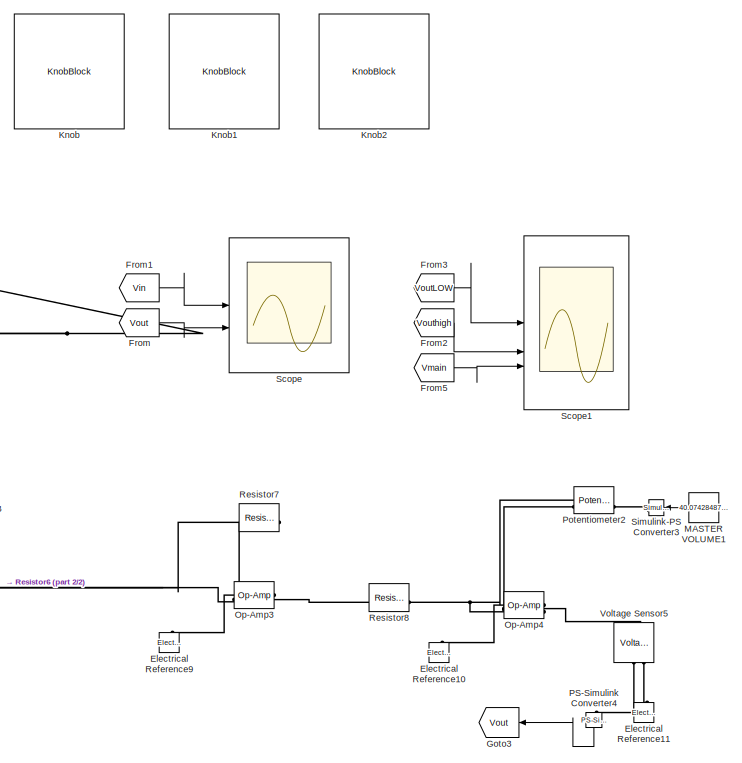
[diagram: root canvas - part 1/2, right side, full height]
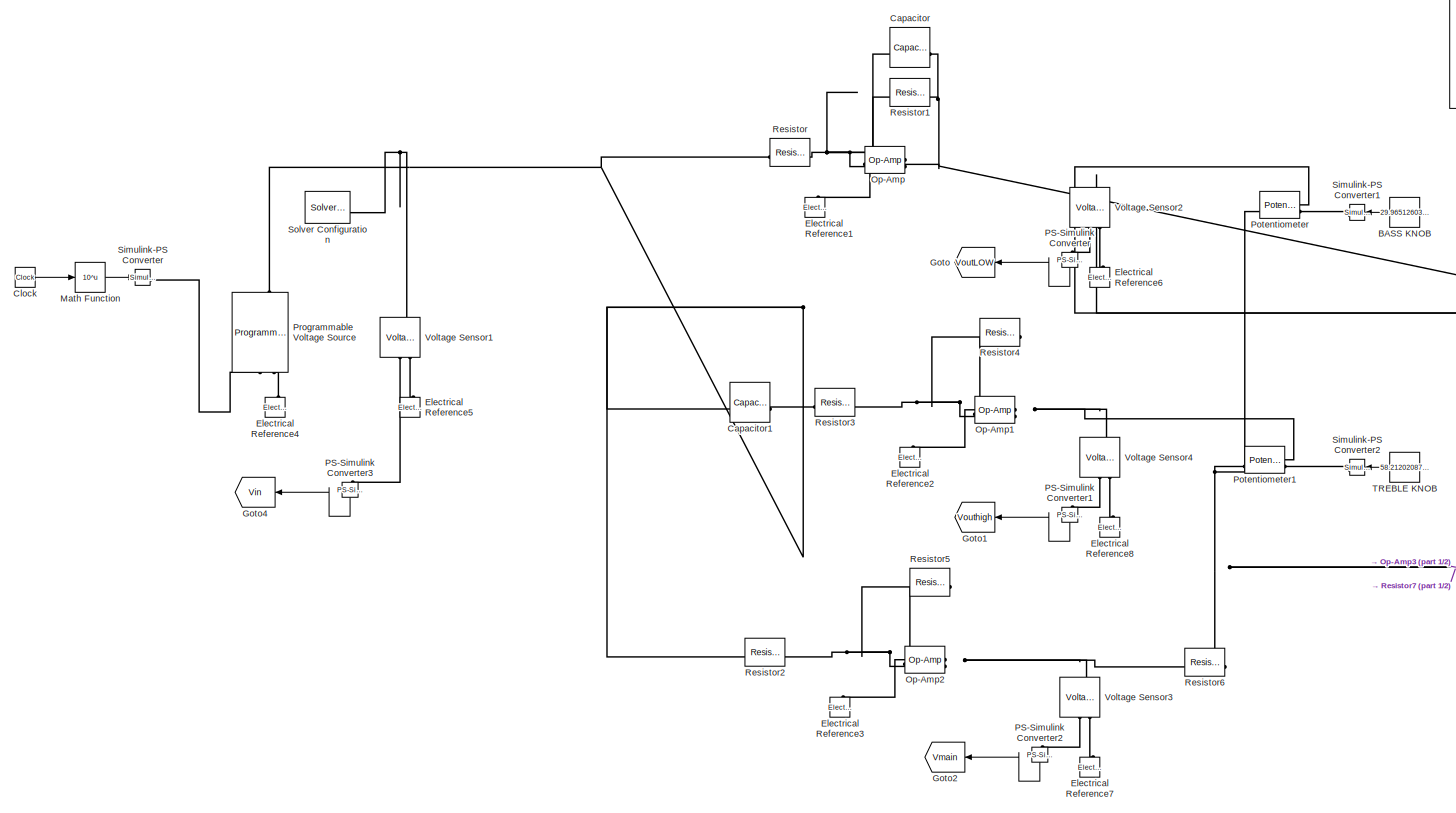
[diagram: root canvas - part 2/2, center side, full height]
MODEL slx_bec9451cd887
KIND model
CONFIG AbsTol = auto
CONFIG EnableMultiTasking = off
CONFIG FixedStep = auto
CONFIG MaxStep = auto
CONFIG MinStep = auto
CONFIG RelTol = 1e-3
CONFIG SampleTimeConstraint = Unconstrained
CONFIG SolverName = VariableStepAuto
CONFIG StartTime = 0.0
CONFIG StopTime = 10.0
BLOCK [Constant] BASS KNOB
  NameLocation = top
  Value = 29.96512603759766
BLOCK [Reference] Capacitor  REF=fl_lib/Electrical/Electrical Elements/Capacitor
  SourceBlock = fl_lib/Electrical/Electrical Elements/Capacitor
  SourceType = Capacitor
BLOCK [Reference] Capacitor1  REF=fl_lib/Electrical/Electrical Elements/Capacitor
  SourceBlock = fl_lib/Electrical/Electrical Elements/Capacitor
  SourceType = Capacitor
BLOCK [Clock] Clock
BLOCK [Reference] Electrical Reference1  REF=fl_lib/Electrical/Electrical Elements/Electrical Reference
  NameLocation = right
  SourceBlock = fl_lib/Electrical/Electrical Elements/Electrical Reference
  SourceType = Electrical Reference
BLOCK [Reference] Electrical Reference10  REF=fl_lib/Electrical/Electrical Elements/Electrical Reference
  NameLocation = right
  SourceBlock = fl_lib/Electrical/Electrical Elements/Electrical Reference
  SourceType = Electrical Reference
BLOCK [Reference] Electrical Reference11  REF=fl_lib/Electrical/Electrical Elements/Electrical Reference
  NameLocation = right
  SourceBlock = fl_lib/Electrical/Electrical Elements/Electrical Reference
  SourceType = Electrical Reference
BLOCK [Reference] Electrical Reference2  REF=fl_lib/Electrical/Electrical Elements/Electrical Reference
  NameLocation = right
  SourceBlock = fl_lib/Electrical/Electrical Elements/Electrical Reference
  SourceType = Electrical Reference
BLOCK [Reference] Electrical Reference3  REF=fl_lib/Electrical/Electrical Elements/Electrical Reference
  NameLocation = right
  SourceBlock = fl_lib/Electrical/Electrical Elements/Electrical Reference
  SourceType = Electrical Reference
BLOCK [Reference] Electrical Reference4  REF=fl_lib/Electrical/Electrical Elements/Electrical Reference
  NameLocation = right
  SourceBlock = fl_lib/Electrical/Electrical Elements/Electrical Reference
  SourceType = Electrical Reference
BLOCK [Reference] Electrical Reference5  REF=fl_lib/Electrical/Electrical Elements/Electrical Reference
  NameLocation = right
  SourceBlock = fl_lib/Electrical/Electrical Elements/Electrical Reference
  SourceType = Electrical Reference
BLOCK [Reference] Electrical Reference6  REF=fl_lib/Electrical/Electrical Elements/Electrical Reference
  NameLocation = right
  SourceBlock = fl_lib/Electrical/Electrical Elements/Electrical Reference
  SourceType = Electrical Reference
BLOCK [Reference] Electrical Reference7  REF=fl_lib/Electrical/Electrical Elements/Electrical Reference
  NameLocation = right
  SourceBlock = fl_lib/Electrical/Electrical Elements/Electrical Reference
  SourceType = Electrical Reference
BLOCK [Reference] Electrical Reference8  REF=fl_lib/Electrical/Electrical Elements/Electrical Reference
  NameLocation = right
  SourceBlock = fl_lib/Electrical/Electrical Elements/Electrical Reference
  SourceType = Electrical Reference
BLOCK [Reference] Electrical Reference9  REF=fl_lib/Electrical/Electrical Elements/Electrical Reference
  NameLocation = right
  SourceBlock = fl_lib/Electrical/Electrical Elements/Electrical Reference
  SourceType = Electrical Reference
BLOCK [From] From
  GotoTag = Vout
BLOCK [From] From1
  GotoTag = Vin
BLOCK [From] From2
  GotoTag = Vouthigh
BLOCK [From] From3
  GotoTag = VoutLOW
BLOCK [From] From5
  GotoTag = Vmain
BLOCK [Goto] Goto
  GotoTag = VoutLOW
  NameLocation = top
BLOCK [Goto] Goto1
  GotoTag = Vouthigh
  NameLocation = top
BLOCK [Goto] Goto2
  GotoTag = Vmain
  NameLocation = top
BLOCK [Goto] Goto3
  GotoTag = Vout
  NameLocation = top
BLOCK [Goto] Goto4
  GotoTag = Vin
  NameLocation = top
BLOCK [KnobBlock] Knob
BLOCK [KnobBlock] Knob1
BLOCK [KnobBlock] Knob2
BLOCK [Constant] MASTER VOLUME1
  NameLocation = top
  Value = 40.07428487141927
BLOCK [Math] Math Function
  Operator = 10^u
BLOCK [Reference] Op-Amp  REF=fl_lib/Electrical/Electrical Elements/Op-Amp
  NameLocation = top
  SourceBlock = fl_lib/Electrical/Electrical Elements/Op-Amp
  SourceType = Op-Amp
BLOCK [Reference] Op-Amp1  REF=fl_lib/Electrical/Electrical Elements/Op-Amp
  NameLocation = top
  SourceBlock = fl_lib/Electrical/Electrical Elements/Op-Amp
  SourceType = Op-Amp
BLOCK [Reference] Op-Amp2  REF=fl_lib/Electrical/Electrical Elements/Op-Amp
  NameLocation = top
  SourceBlock = fl_lib/Electrical/Electrical Elements/Op-Amp
  SourceType = Op-Amp
BLOCK [Reference] Op-Amp3  REF=fl_lib/Electrical/Electrical Elements/Op-Amp
  NameLocation = top
  SourceBlock = fl_lib/Electrical/Electrical Elements/Op-Amp
  SourceType = Op-Amp
BLOCK [Reference] Op-Amp4  REF=fl_lib/Electrical/Electrical Elements/Op-Amp
  NameLocation = top
  SourceBlock = fl_lib/Electrical/Electrical Elements/Op-Amp
  SourceType = Op-Amp
BLOCK [Reference] PS-Simulink Converter  REF=nesl_utility/PS-Simulink
Converter
  NameLocation = left
  SourceBlock = nesl_utility/PS-Simulink\nConverter
  SourceType = PS-Simulink\nConverter
BLOCK [Reference] PS-Simulink Converter1  REF=nesl_utility/PS-Simulink
Converter
  NameLocation = left
  SourceBlock = nesl_utility/PS-Simulink\nConverter
  SourceType = PS-Simulink\nConverter
BLOCK [Reference] PS-Simulink Converter2  REF=nesl_utility/PS-Simulink
Converter
  NameLocation = left
  SourceBlock = nesl_utility/PS-Simulink\nConverter
  SourceType = PS-Simulink\nConverter
BLOCK [Reference] PS-Simulink Converter3  REF=nesl_utility/PS-Simulink
Converter
  NameLocation = left
  SourceBlock = nesl_utility/PS-Simulink\nConverter
  SourceType = PS-Simulink\nConverter
BLOCK [Reference] PS-Simulink Converter4  REF=nesl_utility/PS-Simulink
Converter
  NameLocation = left
  SourceBlock = nesl_utility/PS-Simulink\nConverter
  SourceType = PS-Simulink\nConverter
BLOCK [Reference] Potentiometer  REF=ee_lib/Passive/Potentiometer
  SourceBlock = ee_lib/Passive/Potentiometer
  SourceType = Potentiometer
BLOCK [Reference] Potentiometer1  REF=ee_lib/Passive/Potentiometer
  SourceBlock = ee_lib/Passive/Potentiometer
  SourceType = Potentiometer
BLOCK [Reference] Potentiometer2  REF=ee_lib/Passive/Potentiometer
  SourceBlock = ee_lib/Passive/Potentiometer
  SourceType = Potentiometer
BLOCK [Reference] Programmable Voltage Source  REF=ee_lib/Sources/Programmable Voltage
Source
  NameLocation = right
  SourceBlock = ee_lib/Sources/Programmable Voltage\nSource
  SourceType = Programmable Voltage\nSource
BLOCK [Reference] Resistor  REF=fl_lib/Electrical/Electrical Elements/Resistor
  SourceBlock = fl_lib/Electrical/Electrical Elements/Resistor
  SourceType = Resistor
BLOCK [Reference] Resistor1  REF=fl_lib/Electrical/Electrical Elements/Resistor
  SourceBlock = fl_lib/Electrical/Electrical Elements/Resistor
  SourceType = Resistor
BLOCK [Reference] Resistor2  REF=fl_lib/Electrical/Electrical Elements/Resistor
  SourceBlock = fl_lib/Electrical/Electrical Elements/Resistor
  SourceType = Resistor
BLOCK [Reference] Resistor3  REF=fl_lib/Electrical/Electrical Elements/Resistor
  SourceBlock = fl_lib/Electrical/Electrical Elements/Resistor
  SourceType = Resistor
BLOCK [Reference] Resistor4  REF=fl_lib/Electrical/Electrical Elements/Resistor
  SourceBlock = fl_lib/Electrical/Electrical Elements/Resistor
  SourceType = Resistor
BLOCK [Reference] Resistor5  REF=fl_lib/Electrical/Electrical Elements/Resistor
  SourceBlock = fl_lib/Electrical/Electrical Elements/Resistor
  SourceType = Resistor
BLOCK [Reference] Resistor6  REF=fl_lib/Electrical/Electrical Elements/Resistor
  SourceBlock = fl_lib/Electrical/Electrical Elements/Resistor
  SourceType = Resistor
BLOCK [Reference] Resistor7  REF=fl_lib/Electrical/Electrical Elements/Resistor
  SourceBlock = fl_lib/Electrical/Electrical Elements/Resistor
  SourceType = Resistor
BLOCK [Reference] Resistor8  REF=fl_lib/Electrical/Electrical Elements/Resistor
  SourceBlock = fl_lib/Electrical/Electrical Elements/Resistor
  SourceType = Resistor
BLOCK [Scope] Scope
  ActiveDisplayYMaximum = 17.672725613110412
  ActiveDisplayYMinimum = -21.363071636211536
  Floating = off
  GraphicalSettings = {"Style":{"BackgroundColor":[0.12941176470588237,0.12941176470588237,0.12941176470588237],"AxesColor":[0.07058823529411765,0.07058823529411765,0.07058823529411765],"LabelsColor":[0.8509803921568627,0.8509803921568627,0.8509803921568627],"PreserveColors":false,"Visible":[true,true],"LineStyle":["-","-"],"LineWidth":[1.5,1.5],"BarWidth":[0.9,0.9],"LineColor":["auto","auto"],"LineFaceAlpha":[1,1],"Li...<+2174ch>
  LayoutDimensionsString = [1,1]
  MultipleDisplayCache = [{"MaxYLimMag":21.363071636211536,"MaxYLimReal":17.672725613110412,"MinYLimMag":0,"MinYLimReal":-21.363071636211536,"PlotAsMagnitudePhase":false,"ShowGrid":true,"ShowLegend":false,"Title":"%<SignalLabel>","YLabel":""}]
  NumInputPorts = 2
  ScopeFrameLocation = window
  WasSavedAsWebScope = on
  WindowPosition = [0.000000,36.000000,1536.000000,793.000000,]
BLOCK [Scope] Scope1
  ActiveDisplayYMaximum = 17.672725613110412
  ActiveDisplayYMinimum = -21.363071636211536
  DataLoggingVariableName = ScopeData1
  Floating = off
  GraphicalSettings = {"Style":{"BackgroundColor":[0.12941176470588237,0.12941176470588237,0.12941176470588237],"AxesColor":[0.07058823529411765,0.07058823529411765,0.07058823529411765],"LabelsColor":[0.8509803921568627,0.8509803921568627,0.8509803921568627],"PreserveColors":false,"Visible":[true,true,true],"LineStyle":["-","-","-"],"LineWidth":[1.5,1.5,1.5],"BarWidth":[0.9,0.9,0.9],"LineColor":["auto","auto","auto"],"...<+2949ch>
  LayoutDimensionsString = [1,3]
  MultipleDisplayCache = [{"MaxYLimMag":21.363071636211536,"MaxYLimReal":17.672725613110412,"MinYLimMag":0,"MinYLimReal":-21.363071636211536,"PlotAsMagnitudePhase":false,"ShowGrid":true,"ShowLegend":false,"Title":"%<SignalLabel>","YLabel":""},{"MaxYLimMag":21.363071636211536,"MaxYLimReal":17.672725613110412,"MinYLimMag":0,"MinYLimReal":-21.363071636211536,"PlotAsMagnitudePhase":false,"ShowGrid":true,"ShowLegend":false,"Ti...<+252ch>
  NumInputPorts = 3
  ScopeFrameLocation = window
  WasSavedAsWebScope = on
  WindowPosition = [0.000000,36.000000,1536.000000,793.000000,]
BLOCK [Reference] Simulink-PS Converter  REF=nesl_utility/Simulink-PS
Converter
  SourceBlock = nesl_utility/Simulink-PS\nConverter
  SourceType = Simulink-PS\nConverter
BLOCK [Reference] Simulink-PS Converter1  REF=nesl_utility/Simulink-PS
Converter
  NameLocation = top
  SourceBlock = nesl_utility/Simulink-PS\nConverter
  SourceType = Simulink-PS\nConverter
BLOCK [Reference] Simulink-PS Converter2  REF=nesl_utility/Simulink-PS
Converter
  NameLocation = top
  SourceBlock = nesl_utility/Simulink-PS\nConverter
  SourceType = Simulink-PS\nConverter
BLOCK [Reference] Simulink-PS Converter3  REF=nesl_utility/Simulink-PS
Converter
  NameLocation = top
  SourceBlock = nesl_utility/Simulink-PS\nConverter
  SourceType = Simulink-PS\nConverter
BLOCK [Reference] Solver Configuration  REF=nesl_utility/Solver
Configuration
  SourceBlock = nesl_utility/Solver\nConfiguration
  SourceType = Solver\nConfiguration
BLOCK [Constant] TREBLE KNOB
  NameLocation = top
  Value = 58.21202087402344
BLOCK [Reference] Voltage Sensor1  REF=fl_lib/Electrical/Electrical Sensors/Voltage Sensor
  NameLocation = right
  SourceBlock = fl_lib/Electrical/Electrical Sensors/Voltage Sensor
  SourceType = Voltage Sensor
BLOCK [Reference] Voltage Sensor2  REF=fl_lib/Electrical/Electrical Sensors/Voltage Sensor
  NameLocation = right
  SourceBlock = fl_lib/Electrical/Electrical Sensors/Voltage Sensor
  SourceType = Voltage Sensor
BLOCK [Reference] Voltage Sensor3  REF=fl_lib/Electrical/Electrical Sensors/Voltage Sensor
  NameLocation = right
  SourceBlock = fl_lib/Electrical/Electrical Sensors/Voltage Sensor
  SourceType = Voltage Sensor
BLOCK [Reference] Voltage Sensor4  REF=fl_lib/Electrical/Electrical Sensors/Voltage Sensor
  NameLocation = right
  SourceBlock = fl_lib/Electrical/Electrical Sensors/Voltage Sensor
  SourceType = Voltage Sensor
BLOCK [Reference] Voltage Sensor5  REF=fl_lib/Electrical/Electrical Sensors/Voltage Sensor
  NameLocation = right
  SourceBlock = fl_lib/Electrical/Electrical Sensors/Voltage Sensor
  SourceType = Voltage Sensor
LINE BASS KNOB:1 -> Simulink-PS Converter1:1
LINE Clock:1 -> Math Function:1
LINE From1:1 -> Scope:1
LINE From2:1 -> Scope1:2
LINE From3:1 -> Scope1:1
LINE From5:1 -> Scope1:3
LINE From:1 -> Scope:2
LINE MASTER VOLUME1:1 -> Simulink-PS Converter3:1
LINE Math Function:1 -> Simulink-PS Converter:1
LINE PS-Simulink Converter1:1 -> Goto1:1
LINE PS-Simulink Converter2:1 -> Goto2:1
LINE PS-Simulink Converter3:1 -> Goto4:1
LINE PS-Simulink Converter4:1 -> Goto3:1
LINE PS-Simulink Converter:1 -> Goto:1
LINE TREBLE KNOB:1 -> Simulink-PS Converter2:1
PNET net1: Capacitor1:LConn1 -- Programmable Voltage Source:LConn1 -- Resistor2:LConn1 -- Resistor:LConn1 -- Solver Configuration:RConn1 -- Voltage Sensor1:LConn1
PLINE Capacitor1:RConn1 -- Resistor3:LConn1
PNET net2: Capacitor:LConn1 -- Op-Amp:LConn2 -- Resistor1:LConn1 -- Resistor:RConn1
PNET net3: Capacitor:RConn1 -- Op-Amp:RConn1 -- Potentiometer:RConn1 -- Resistor1:RConn1 -- Voltage Sensor2:LConn1
PLINE Electrical Reference10:LConn1 -- Op-Amp4:LConn1
PLINE Electrical Reference11:LConn1 -- Voltage Sensor5:RConn2
PLINE Electrical Reference1:LConn1 -- Op-Amp:LConn1
PLINE Electrical Reference2:LConn1 -- Op-Amp1:LConn1
PLINE Electrical Reference3:LConn1 -- Op-Amp2:LConn1
PLINE Electrical Reference4:LConn1 -- Programmable Voltage Source:RConn2
PLINE Electrical Reference5:LConn1 -- Voltage Sensor1:RConn2
PLINE Electrical Reference6:LConn1 -- Voltage Sensor2:RConn2
PLINE Electrical Reference7:LConn1 -- Voltage Sensor3:RConn2
PLINE Electrical Reference8:LConn1 -- Voltage Sensor4:RConn2
PLINE Electrical Reference9:LConn1 -- Op-Amp3:LConn1
PNET net4: Op-Amp1:LConn2 -- Resistor3:RConn1 -- Resistor4:LConn1
PNET net5: Op-Amp1:RConn1 -- Potentiometer1:RConn1 -- Resistor4:RConn1 -- Voltage Sensor4:LConn1
PNET net6: Op-Amp2:LConn2 -- Resistor2:RConn1 -- Resistor5:LConn1
PNET net7: Op-Amp2:RConn1 -- Resistor5:RConn1 -- Resistor6:LConn1 -- Voltage Sensor3:LConn1
PNET net8: Op-Amp3:LConn2 -- Potentiometer1:LConn2 -- Potentiometer:LConn2 -- Resistor6:RConn1 -- Resistor7:LConn1
PNET net9: Op-Amp3:RConn1 -- Resistor7:RConn1 -- Resistor8:LConn1
PNET net10: Op-Amp4:LConn2 -- Potentiometer2:LConn1 -- Resistor8:RConn1
PNET net11: Op-Amp4:RConn1 -- Potentiometer2:LConn2 -- Voltage Sensor5:LConn1
PLINE PS-Simulink Converter1:LConn1 -- Voltage Sensor4:RConn1
PLINE PS-Simulink Converter2:LConn1 -- Voltage Sensor3:RConn1
PLINE PS-Simulink Converter3:LConn1 -- Voltage Sensor1:RConn1
PLINE PS-Simulink Converter4:LConn1 -- Voltage Sensor5:RConn1
PLINE PS-Simulink Converter:LConn1 -- Voltage Sensor2:RConn1
PLINE Potentiometer1:RConn2 -- Simulink-PS Converter2:RConn1
PLINE Potentiometer2:RConn2 -- Simulink-PS Converter3:RConn1
PLINE Potentiometer:RConn2 -- Simulink-PS Converter1:RConn1
PLINE Programmable Voltage Source:RConn1 -- Simulink-PS Converter:RConn1
note: PNET lines group multi-terminal physical nets as a canonical sorted terminal list (undirected conserving connections); 2-terminal nets keep the pairwise PLINE form
